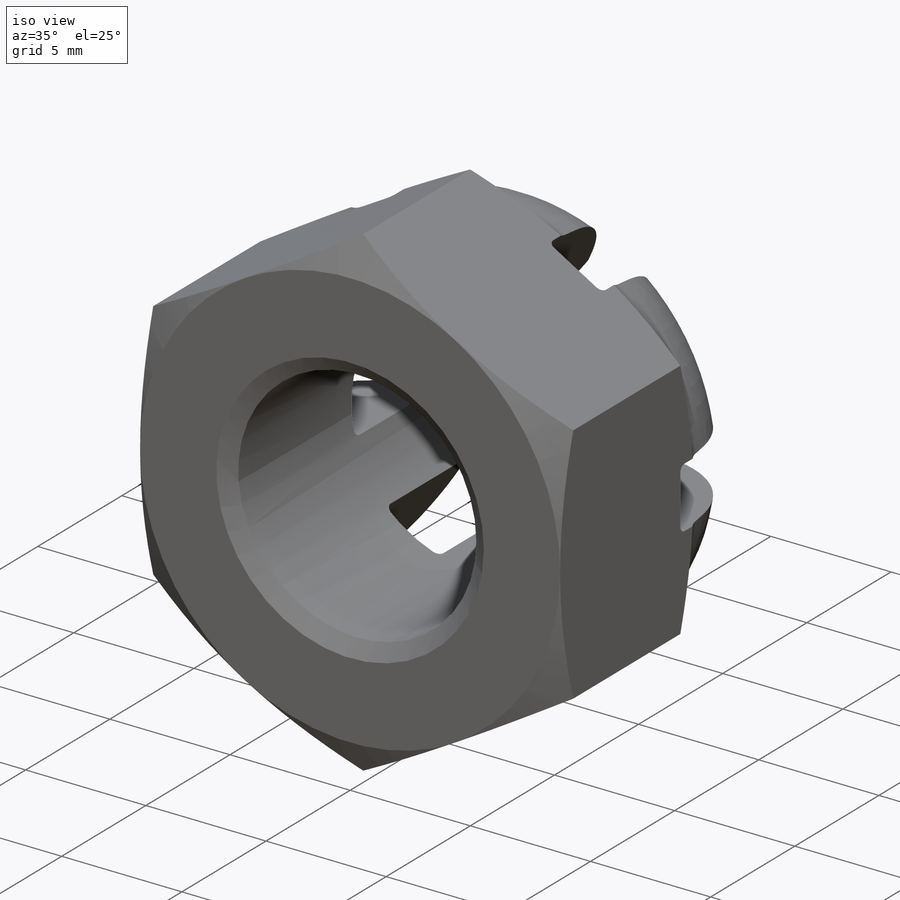
[diagram: iso view]
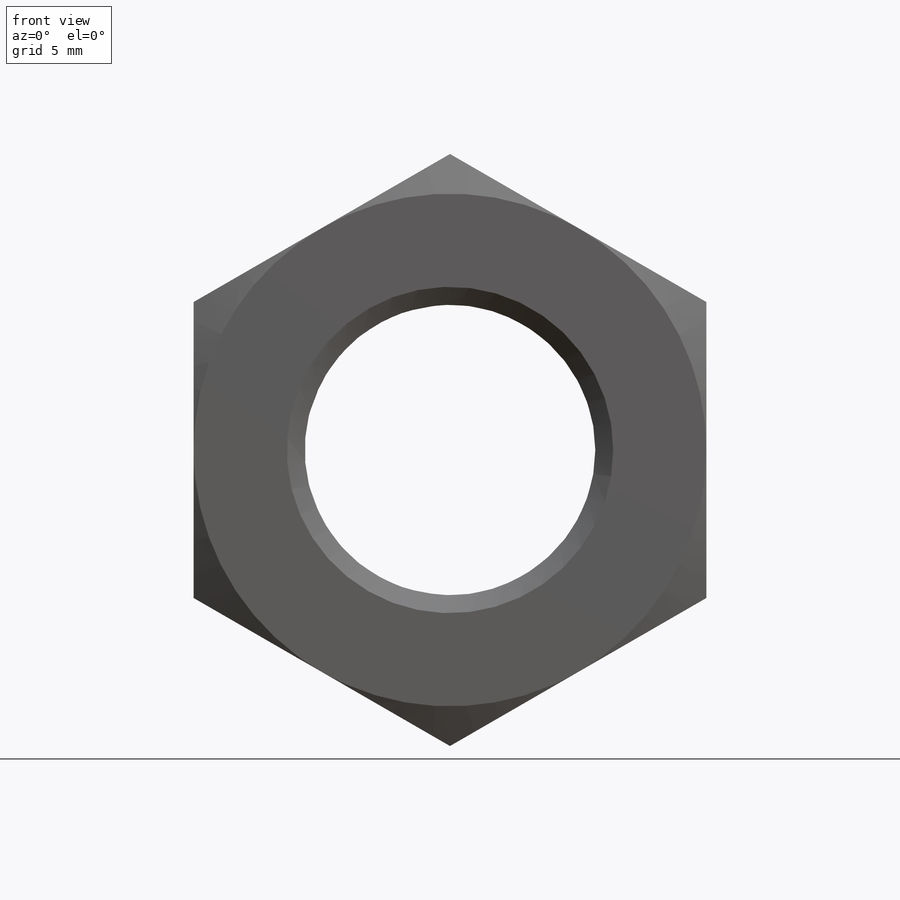
[diagram: front view]
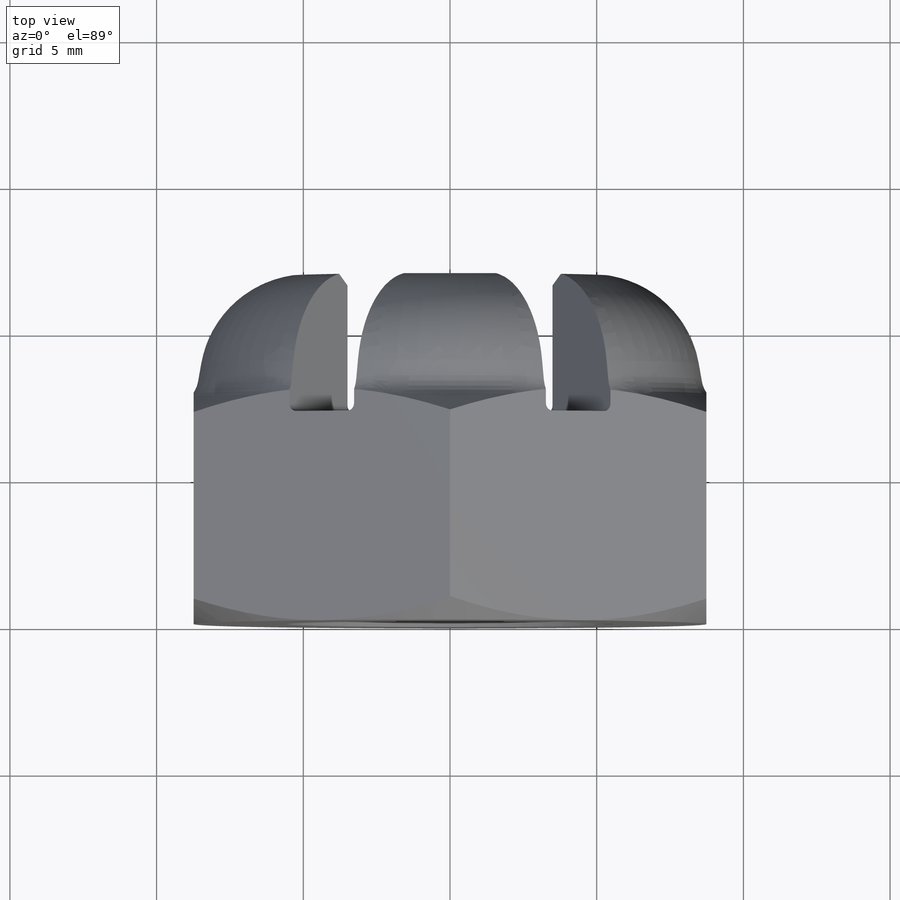
[diagram: top view]
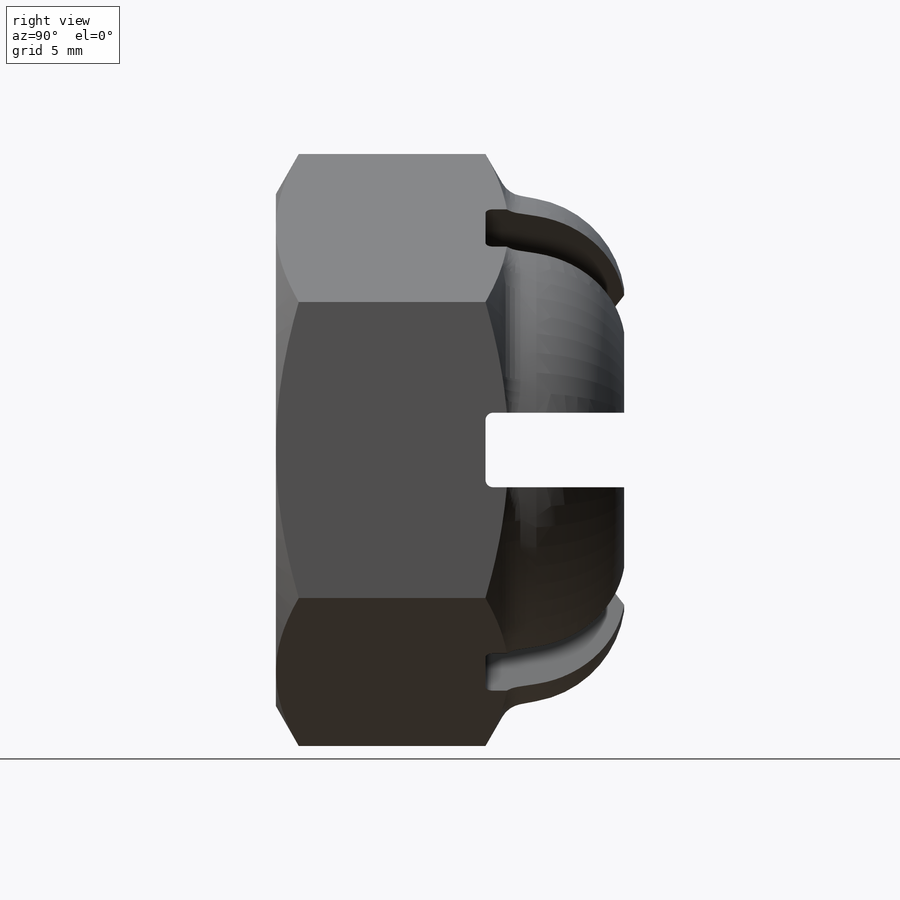
[diagram: right view]
SOLIDWORKS PART (.sldprt)
format: sldprt  version: not decoded by parser v0  size: 551,936 bytes
history: native  units: mm
features: sketch x5, revolve x4, cut_revolve x2, material x1, extrude x1, fillet x1, cut_extrude x1, pattern_circular x1 (+12 scaffold rows collapsed)
feature tree (28):
  scaffold x12  (default folders/planes/origin — collapsed)
  material  "AISI 4340 Steel, normalized"
  sketch  "BaseNutSke"  dims[c1.Thread_min=9.906mm c1.D1=50.8mm c2.D1=30.0deg c2.D2=~24.797543mm c3.D2=60.0deg c3.D3=50.8mm c4.D3=30.0deg c4.D4=~24.797543mm c5.D4=60.0deg c6.D4=~24.797543mm c7.D4=60.0deg c8.D4=~24.797543mm c9.D4=60.0deg c9.Width_flats=17.4752mm c9.D1=~21.475302mm c9.D2=~21.475302mm c10.D1=~21.475302mm c10.D2=8.7376mm c10.D3=8.7376mm c11.D1=~24.797543mm c12.D1=120.0deg c13.D1=~23.397294mm c14.D1=120.0deg c14.D4=8.7376mm]
  extrude  "BaseNut"  Depth=7.9248mm
  sketch  "Sketch3"  dims[c1.D1=8.7376mm c1.D2=2.54mm c1.D3=12.7mm c1.D4=12.7mm c1.D5=10.9093mm c1.D6=~10.998523mm c2.D6=~179.413404deg c3.D6=~2.539714mm c3.D3=12.7mm c3.D5=9.525mm c3.D2=~3.890588mm c4.D2=30.0deg]
  cut_revolve  "Double-Chamfer"  Angle=360deg
  sketch  "Sketch5"  dims[c1.D5=~3.672321mm c1.D1=11.9126mm c1.D2=9.906mm c1.D3=~1.781962mm c2.D3=100.0deg c2.D4=17.4752mm]
  revolve  "Revolve1"  Angle=360deg
  sketch  "EndChamferSketch"  dims[c1.D1=~8.980256mm c2.D1=315.0deg c3.D1=~8.980256mm c4.D1=45.0deg c4.D2=~8.94581mm c5.D2=~1.952549deg c5.D3=6.35mm c6.D2=25.7048mm c6.D1=~6.352235mm c7.D1=35.0deg c7.D2=12.7mm c7.D3=12.7mm c8.D2=22.5552mm c8.D3=25.4mm c8.D4=12.7mm c9.D3=12.7mm c9.D2=0.0508mm c9.Offset1=25.4254mm c9.ThreadMajor=12.7mm c9.ChamferDepth=0.635mm c9.Offset2=12.0142mm c10.ThreadMajor=12.7mm c10.Offset1=22.5552mm c11.ThreadMajor=12.7mm c11.Offset1=22.5552mm c12.ThreadMajor=5.5626mm c12.Offset1=11.9634mm]
  cut_revolve  "EndChamfer"  Angle=360deg
  revolve  "ConfigurationName"  CopiedFlag=1  [1 undecoded]
  revolve  "PartNumberID"  [1 undecoded]
  revolve  "ConfigurationName"  CopiedFlag=0  [1 undecoded]
  fillet  "Fillet1"  Radius=0.889mm
  sketch  "Sketch6"  dims[D2=0.254mm D1=2.54mm D3=0.254mm]
  cut_extrude  "C-Ext Slot"  [1 undecoded]
  pattern_circular  "CirPattern1"  Count=3 Angle=360deg
decode coverage: 13 of 15 modeling features carry decoded parameters
note: ~ marks probable driven/reference dimensions
note: 4 parameter values undecoded
summary: no parameter record found for 4 features
note: suppression state not decoded; provenance and decode notes live in map.json
